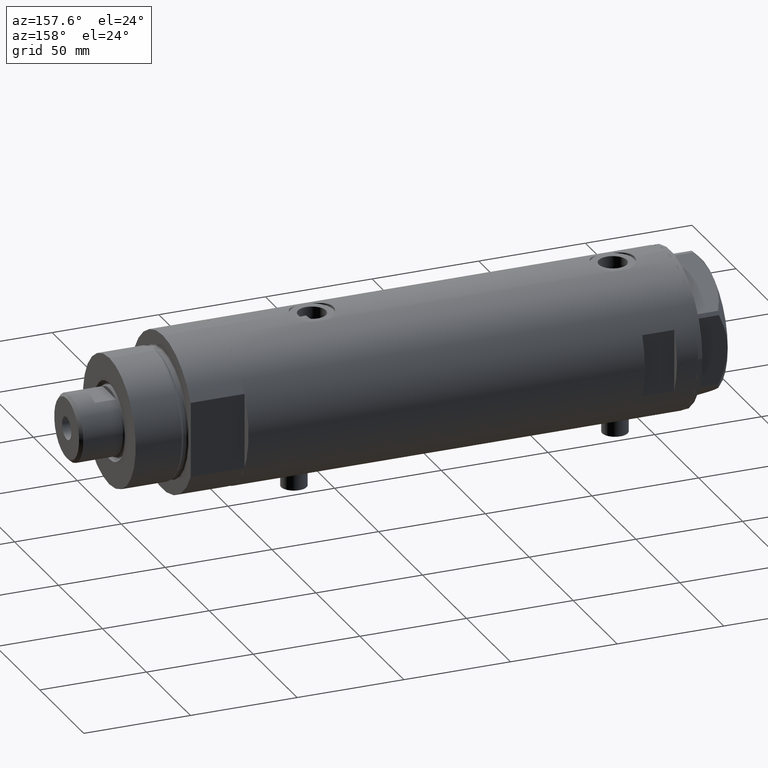
[diagram: clean part render]
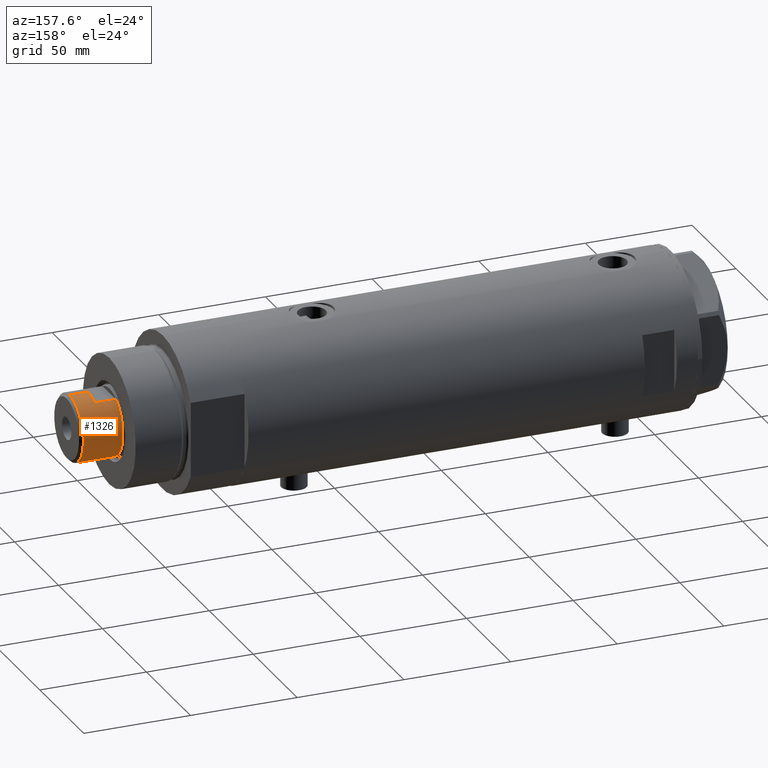
[diagram: same view with one face highlighted and labeled with its STEP entity id]
A machine part, auxiliary view. The second image highlights one B-rep face of the part: STEP entity #1326.
In plain terms, the highlighted cylindrical surface (edge-blend (fillet) strip) has radius 15.5 mm, axis along (-1, -0, 0).
Its self-contained STEP definition (entity closure, byte-faithful):
#51 = AXIS2_PLACEMENT_3D ( 'NONE', #3294, #3926, #4010 ) ;
#131 = AXIS2_PLACEMENT_3D ( 'NONE', #1459, #3134, #3460 ) ;
#226 = LINE ( 'NONE', #3278, #418 ) ;
#275 = VERTEX_POINT ( 'NONE', #3123 ) ;
#418 = VECTOR ( 'NONE', #1685, 1000.000000000000000 ) ;
#421 = AXIS2_PLACEMENT_3D ( 'NONE', #3452, #3777, #1341 ) ;
#446 = ORIENTED_EDGE ( 'NONE', *, *, #695, .T. ) ;
#695 = EDGE_CURVE ( 'NONE', #3131, #275, #4460, .T. ) ;
#928 = AXIS2_PLACEMENT_3D ( 'NONE', #3605, #1273, #3360 ) ;
#1047 = EDGE_CURVE ( 'NONE', #2326, #275, #2158, .T. ) ;
#1242 = CARTESIAN_POINT ( 'NONE',  ( 13.48630416385452868, 7.639999999999997904, 245.0000000000000000 ) ) ;
#1273 = DIRECTION ( 'NONE',  ( 0.000000000000000000, 0.000000000000000000, 1.000000000000000000 ) ) ;
#1276 = LINE ( 'NONE', #2996, #4099 ) ;
#1326 = ADVANCED_FACE ( 'NONE', ( #1586 ), #2248, .T. ) ;
#1341 = DIRECTION ( 'NONE',  ( 1.000000000000000000, 0.000000000000000000, 0.000000000000000000 ) ) ;
#1396 = ORIENTED_EDGE ( 'NONE', *, *, #1642, .T. ) ;
#1401 = VERTEX_POINT ( 'NONE', #2371 ) ;
#1459 = CARTESIAN_POINT ( 'NONE',  ( 0.000000000000000000, 0.000000000000000000, 253.5999999999999375 ) ) ;
#1471 = VERTEX_POINT ( 'NONE', #1542 ) ;
#1534 = CARTESIAN_POINT ( 'NONE',  ( 15.49999999999999822, 1.898202538678397163E-15, 253.5999999999999375 ) ) ;
#1542 = CARTESIAN_POINT ( 'NONE',  ( 15.50000000000000178, 1.898202538678397557E-15, 245.0000000000000000 ) ) ;
#1573 = AXIS2_PLACEMENT_3D ( 'NONE', #2529, #2574, #4317 ) ;
#1586 = FACE_OUTER_BOUND ( 'NONE', #3491, .T. ) ;
#1627 = CARTESIAN_POINT ( 'NONE',  ( -13.48630416385452691, 7.640000000000085834, 235.0000000000000000 ) ) ;
#1642 = EDGE_CURVE ( 'NONE', #3659, #1471, #1276, .T. ) ;
#1659 = ORIENTED_EDGE ( 'NONE', *, *, #1854, .F. ) ;
#1685 = DIRECTION ( 'NONE',  ( -0.000000000000000000, -0.000000000000000000, -1.000000000000000000 ) ) ;
#1854 = EDGE_CURVE ( 'NONE', #3131, #3292, #226, .T. ) ;
#1885 = EDGE_CURVE ( 'NONE', #1401, #4148, #2962, .T. ) ;
#2158 = LINE ( 'NONE', #3547, #4388 ) ;
#2206 = CARTESIAN_POINT ( 'NONE',  ( -15.49999999999999822, 0.000000000000000000, 253.5999999999999375 ) ) ;
#2248 = CYLINDRICAL_SURFACE ( 'NONE', #1573, 15.49999999999999822 ) ;
#2259 = CARTESIAN_POINT ( 'NONE',  ( 13.48630416385452868, 7.639999999999997904, 235.0000000000000000 ) ) ;
#2326 = VERTEX_POINT ( 'NONE', #2206 ) ;
#2361 = DIRECTION ( 'NONE',  ( -0.000000000000000000, -0.000000000000000000, -1.000000000000000000 ) ) ;
#2371 = CARTESIAN_POINT ( 'NONE',  ( 13.48630416385452868, 7.639999999999997904, 245.0000000000000000 ) ) ;
#2375 = ORIENTED_EDGE ( 'NONE', *, *, #1047, .F. ) ;
#2492 = EDGE_CURVE ( 'NONE', #2326, #3659, #3313, .T. ) ;
#2511 = CIRCLE ( 'NONE', #51, 15.50000000000000000 ) ;
#2529 = CARTESIAN_POINT ( 'NONE',  ( 0.000000000000000000, 0.000000000000000000, 245.0000000000000000 ) ) ;
#2574 = DIRECTION ( 'NONE',  ( -0.000000000000000000, -0.000000000000000000, -1.000000000000000000 ) ) ;
#2775 = CARTESIAN_POINT ( 'NONE',  ( -13.48630416385452868, 7.639999999999998792, 245.0000000000000000 ) ) ;
#2962 = LINE ( 'NONE', #1242, #3384 ) ;
#2996 = CARTESIAN_POINT ( 'NONE',  ( 15.49999999999999822, 1.898202538678397163E-15, 245.0000000000000000 ) ) ;
#3123 = CARTESIAN_POINT ( 'NONE',  ( -15.50000000000000178, 0.000000000000000000, 245.0000000000000000 ) ) ;
#3131 = VERTEX_POINT ( 'NONE', #2775 ) ;
#3134 = DIRECTION ( 'NONE',  ( 0.000000000000000000, 0.000000000000000000, -1.000000000000000000 ) ) ;
#3278 = CARTESIAN_POINT ( 'NONE',  ( -13.48630416385452868, 7.639999999999998792, 245.0000000000000000 ) ) ;
#3292 = VERTEX_POINT ( 'NONE', #1627 ) ;
#3294 = CARTESIAN_POINT ( 'NONE',  ( 0.000000000000000000, 0.000000000000000000, 245.0000000000000000 ) ) ;
#3313 = CIRCLE ( 'NONE', #131, 15.49999999999999822 ) ;
#3360 = DIRECTION ( 'NONE',  ( 1.000000000000000000, 0.000000000000000000, 0.000000000000000000 ) ) ;
#3384 = VECTOR ( 'NONE', #4344, 1000.000000000000000 ) ;
#3452 = CARTESIAN_POINT ( 'NONE',  ( 0.000000000000000000, 0.000000000000000000, 235.0000000000000000 ) ) ;
#3460 = DIRECTION ( 'NONE',  ( 1.000000000000000000, 0.000000000000000000, 0.000000000000000000 ) ) ;
#3491 = EDGE_LOOP ( 'NONE', ( #3710, #1396, #4274, #3978, #3889, #1659, #446, #2375 ) ) ;
#3547 = CARTESIAN_POINT ( 'NONE',  ( -15.49999999999999822, 0.000000000000000000, 245.0000000000000000 ) ) ;
#3605 = CARTESIAN_POINT ( 'NONE',  ( 0.000000000000000000, 0.000000000000000000, 245.0000000000000000 ) ) ;
#3659 = VERTEX_POINT ( 'NONE', #1534 ) ;
#3710 = ORIENTED_EDGE ( 'NONE', *, *, #2492, .T. ) ;
#3720 = EDGE_CURVE ( 'NONE', #1471, #1401, #2511, .T. ) ;
#3750 = CIRCLE ( 'NONE', #421, 15.50000000000004086 ) ;
#3777 = DIRECTION ( 'NONE',  ( 0.000000000000000000, 0.000000000000000000, 1.000000000000000000 ) ) ;
#3831 = EDGE_CURVE ( 'NONE', #4148, #3292, #3750, .T. ) ;
#3889 = ORIENTED_EDGE ( 'NONE', *, *, #3831, .T. ) ;
#3926 = DIRECTION ( 'NONE',  ( 0.000000000000000000, 0.000000000000000000, 1.000000000000000000 ) ) ;
#3978 = ORIENTED_EDGE ( 'NONE', *, *, #1885, .T. ) ;
#4010 = DIRECTION ( 'NONE',  ( 1.000000000000000000, 0.000000000000000000, 0.000000000000000000 ) ) ;
#4099 = VECTOR ( 'NONE', #2361, 1000.000000000000000 ) ;
#4148 = VERTEX_POINT ( 'NONE', #2259 ) ;
#4202 = DIRECTION ( 'NONE',  ( -0.000000000000000000, -0.000000000000000000, -1.000000000000000000 ) ) ;
#4274 = ORIENTED_EDGE ( 'NONE', *, *, #3720, .T. ) ;
#4317 = DIRECTION ( 'NONE',  ( -1.000000000000000000, 0.000000000000000000, 0.000000000000000000 ) ) ;
#4344 = DIRECTION ( 'NONE',  ( -0.000000000000000000, -0.000000000000000000, -1.000000000000000000 ) ) ;
#4388 = VECTOR ( 'NONE', #4202, 1000.000000000000000 ) ;
#4460 = CIRCLE ( 'NONE', #928, 15.50000000000000000 ) ;